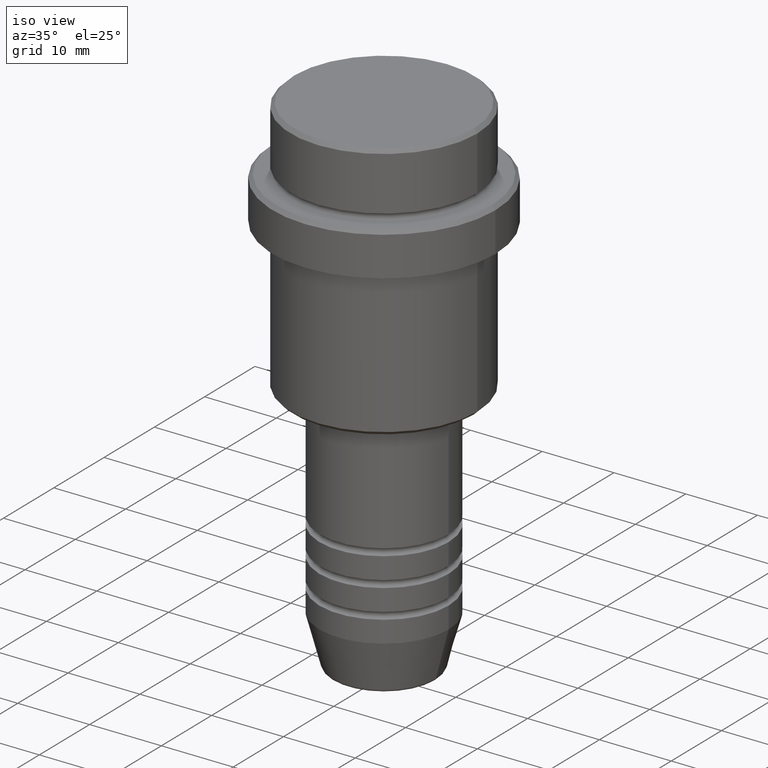
[diagram: clean part render]
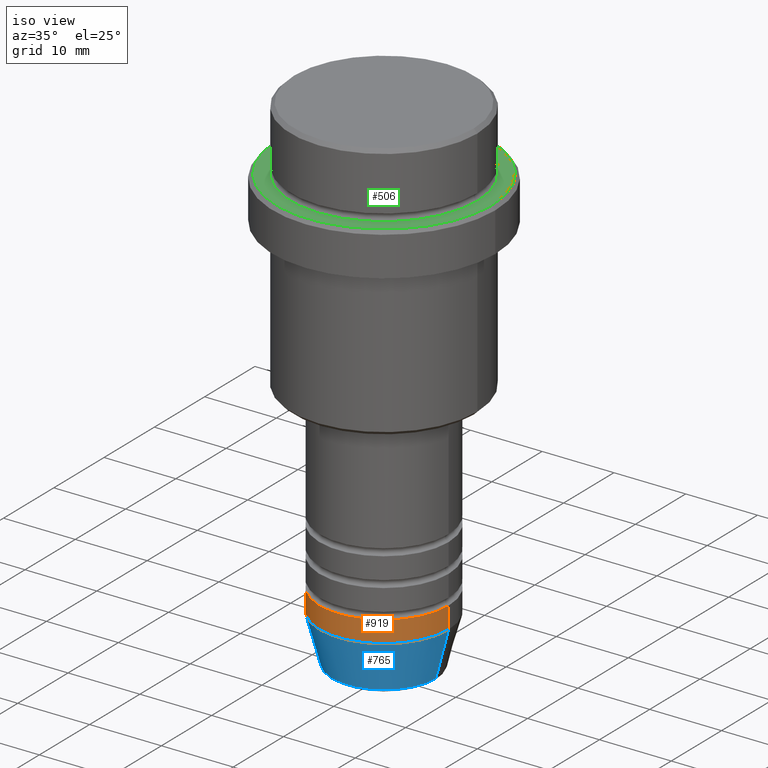
[diagram: same view with three faces highlighted in distinct colors, each labeled with its STEP entity id]
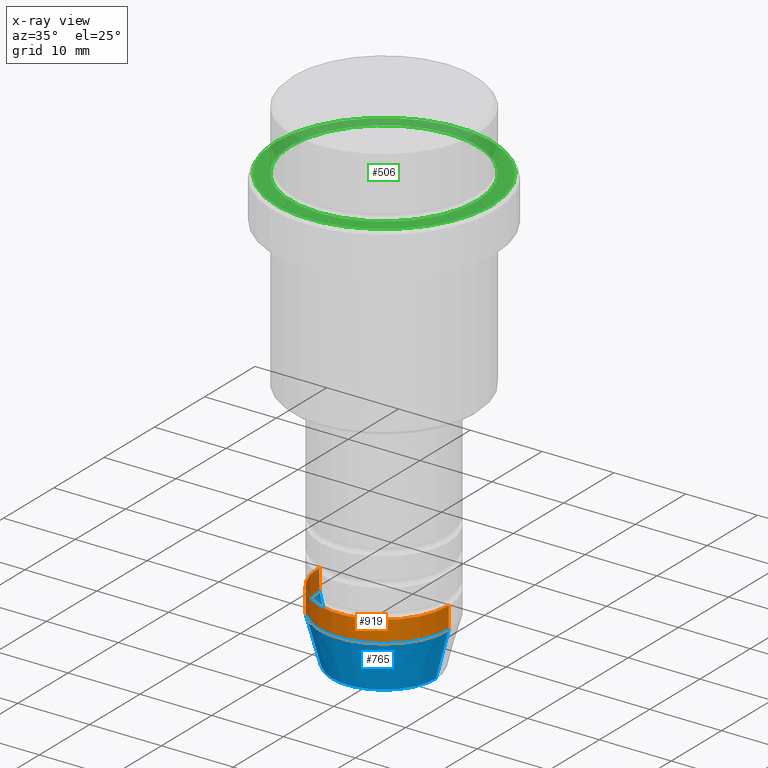
[diagram: x-ray of the same camera — body ghosted, the three highlighted faces saturated]
A machine part, iso view with three faces highlighted in distinct colors.
The next image is the same camera in x-ray (body ghosted, the three faces saturated) — at least one of them is partly hidden behind the body in this view.
Their STEP definitions:

[orange] entity #919 — the highlighted cylindrical surface (partial cylindrical patch) has radius 9 mm, axis along (-0, -0, 1).
#59 = CIRCLE ( 'NONE', #634, 9.000000000000000000 ) ;
#104 = CIRCLE ( 'NONE', #902, 9.000000000000000000 ) ;
#174 = ORIENTED_EDGE ( 'NONE', *, *, #1150, .F. ) ;
#190 = CARTESIAN_POINT ( 'NONE',  ( -9.000000000000000000, 1.102182119232617714E-15, -61.00000000000000000 ) ) ;
#208 = CARTESIAN_POINT ( 'NONE',  ( -9.000000000000000000, 1.102182119232617714E-15, 0.000000000000000000 ) ) ;
#224 = DIRECTION ( 'NONE',  ( 1.000000000000000000, 0.000000000000000000, 0.000000000000000000 ) ) ;
#233 = ORIENTED_EDGE ( 'NONE', *, *, #713, .T. ) ;
#325 = LINE ( 'NONE', #546, #787 ) ;
#358 = AXIS2_PLACEMENT_3D ( 'NONE', #1214, #1010, #1102 ) ;
#373 = CYLINDRICAL_SURFACE ( 'NONE', #358, 9.000000000000000000 ) ;
#440 = CARTESIAN_POINT ( 'NONE',  ( 0.000000000000000000, 0.000000000000000000, -64.00000000000000000 ) ) ;
#467 = VERTEX_POINT ( 'NONE', #1323 ) ;
#481 = FACE_OUTER_BOUND ( 'NONE', #505, .T. ) ;
#505 = EDGE_LOOP ( 'NONE', ( #174, #1325, #233, #685 ) ) ;
#546 = CARTESIAN_POINT ( 'NONE',  ( 9.000000000000000000, 0.000000000000000000, 0.000000000000000000 ) ) ;
#634 = AXIS2_PLACEMENT_3D ( 'NONE', #726, #1151, #866 ) ;
#636 = EDGE_CURVE ( 'NONE', #1183, #1130, #59, .T. ) ;
#685 = ORIENTED_EDGE ( 'NONE', *, *, #636, .F. ) ;
#713 = EDGE_CURVE ( 'NONE', #467, #1130, #325, .T. ) ;
#714 = LINE ( 'NONE', #208, #929 ) ;
#726 = CARTESIAN_POINT ( 'NONE',  ( 0.000000000000000000, 0.000000000000000000, -61.00000000000000000 ) ) ;
#787 = VECTOR ( 'NONE', #1393, 1000.000000000000000 ) ;
#847 = CARTESIAN_POINT ( 'NONE',  ( -9.000000000000000000, 1.102182119232617714E-15, -64.00000000000000000 ) ) ;
#866 = DIRECTION ( 'NONE',  ( 1.000000000000000000, 0.000000000000000000, 0.000000000000000000 ) ) ;
#902 = AXIS2_PLACEMENT_3D ( 'NONE', #440, #1202, #224 ) ;
#916 = CARTESIAN_POINT ( 'NONE',  ( 9.000000000000000000, 0.000000000000000000, -61.00000000000000000 ) ) ;
#919 = ADVANCED_FACE ( 'NONE', ( #481 ), #373, .T. ) ;
#929 = VECTOR ( 'NONE', #1409, 1000.000000000000000 ) ;
#1010 = DIRECTION ( 'NONE',  ( -0.000000000000000000, -0.000000000000000000, 1.000000000000000000 ) ) ;
#1102 = DIRECTION ( 'NONE',  ( 1.000000000000000000, 0.000000000000000000, 0.000000000000000000 ) ) ;
#1130 = VERTEX_POINT ( 'NONE', #916 ) ;
#1150 = EDGE_CURVE ( 'NONE', #1212, #1183, #714, .T. ) ;
#1151 = DIRECTION ( 'NONE',  ( -0.000000000000000000, -0.000000000000000000, 1.000000000000000000 ) ) ;
#1183 = VERTEX_POINT ( 'NONE', #190 ) ;
#1202 = DIRECTION ( 'NONE',  ( -0.000000000000000000, -0.000000000000000000, 1.000000000000000000 ) ) ;
#1212 = VERTEX_POINT ( 'NONE', #847 ) ;
#1214 = CARTESIAN_POINT ( 'NONE',  ( 0.000000000000000000, 0.000000000000000000, 0.000000000000000000 ) ) ;
#1323 = CARTESIAN_POINT ( 'NONE',  ( 9.000000000000000000, 0.000000000000000000, -64.00000000000000000 ) ) ;
#1325 = ORIENTED_EDGE ( 'NONE', *, *, #1361, .T. ) ;
#1361 = EDGE_CURVE ( 'NONE', #1212, #467, #104, .T. ) ;
#1393 = DIRECTION ( 'NONE',  ( -0.000000000000000000, -0.000000000000000000, 1.000000000000000000 ) ) ;
#1409 = DIRECTION ( 'NONE',  ( -0.000000000000000000, -0.000000000000000000, 1.000000000000000000 ) ) ;

[blue] entity #765 — the highlighted conical surface has half-angle 15 deg.
#18 = DIRECTION ( 'NONE',  ( -0.000000000000000000, -0.000000000000000000, 1.000000000000000000 ) ) ;
#65 = AXIS2_PLACEMENT_3D ( 'NONE', #214, #18, #109 ) ;
#104 = CIRCLE ( 'NONE', #902, 9.000000000000000000 ) ;
#109 = DIRECTION ( 'NONE',  ( 1.000000000000000000, 0.000000000000000000, 0.000000000000000000 ) ) ;
#214 = CARTESIAN_POINT ( 'NONE',  ( 0.000000000000000000, 0.000000000000000000, -70.62940952255127058 ) ) ;
#224 = DIRECTION ( 'NONE',  ( 1.000000000000000000, 0.000000000000000000, 0.000000000000000000 ) ) ;
#256 = ORIENTED_EDGE ( 'NONE', *, *, #528, .T. ) ;
#275 = ORIENTED_EDGE ( 'NONE', *, *, #1361, .F. ) ;
#280 = CARTESIAN_POINT ( 'NONE',  ( -7.223655072137189492, 9.934123627281765110E-16, -70.62940952255127058 ) ) ;
#383 = VECTOR ( 'NONE', #1171, 1000.000000000000000 ) ;
#385 = AXIS2_PLACEMENT_3D ( 'NONE', #1296, #748, #641 ) ;
#440 = CARTESIAN_POINT ( 'NONE',  ( 0.000000000000000000, 0.000000000000000000, -64.00000000000000000 ) ) ;
#467 = VERTEX_POINT ( 'NONE', #1323 ) ;
#479 = ORIENTED_EDGE ( 'NONE', *, *, #1398, .F. ) ;
#498 = CIRCLE ( 'NONE', #65, 7.223655072137188604 ) ;
#528 = EDGE_CURVE ( 'NONE', #1210, #467, #1040, .T. ) ;
#544 = EDGE_LOOP ( 'NONE', ( #479, #761, #256, #275 ) ) ;
#641 = DIRECTION ( 'NONE',  ( 1.000000000000000000, 0.000000000000000000, 0.000000000000000000 ) ) ;
#668 = CARTESIAN_POINT ( 'NONE',  ( -9.000000000000000000, 1.102182119232617714E-15, -64.00000000000000000 ) ) ;
#747 = CONICAL_SURFACE ( 'NONE', #385, 9.000000000000000000, 0.2617993877991500740 ) ;
#748 = DIRECTION ( 'NONE',  ( -0.000000000000000000, -0.000000000000000000, 1.000000000000000000 ) ) ;
#761 = ORIENTED_EDGE ( 'NONE', *, *, #1320, .T. ) ;
#765 = ADVANCED_FACE ( 'NONE', ( #1318 ), #747, .T. ) ;
#839 = VECTOR ( 'NONE', #871, 1000.000000000000000 ) ;
#847 = CARTESIAN_POINT ( 'NONE',  ( -9.000000000000000000, 1.102182119232617714E-15, -64.00000000000000000 ) ) ;
#871 = DIRECTION ( 'NONE',  ( -0.2588190451025213501, 3.169619151431772337E-17, 0.9659258262890680902 ) ) ;
#894 = LINE ( 'NONE', #668, #839 ) ;
#902 = AXIS2_PLACEMENT_3D ( 'NONE', #440, #1202, #224 ) ;
#952 = CARTESIAN_POINT ( 'NONE',  ( 9.000000000000000000, 0.000000000000000000, -64.00000000000000000 ) ) ;
#987 = VERTEX_POINT ( 'NONE', #280 ) ;
#1040 = LINE ( 'NONE', #952, #383 ) ;
#1078 = CARTESIAN_POINT ( 'NONE',  ( 7.223655072137188604, 0.000000000000000000, -70.62940952255127058 ) ) ;
#1171 = DIRECTION ( 'NONE',  ( 0.2588190451025213501, 0.000000000000000000, 0.9659258262890680902 ) ) ;
#1202 = DIRECTION ( 'NONE',  ( -0.000000000000000000, -0.000000000000000000, 1.000000000000000000 ) ) ;
#1210 = VERTEX_POINT ( 'NONE', #1078 ) ;
#1212 = VERTEX_POINT ( 'NONE', #847 ) ;
#1296 = CARTESIAN_POINT ( 'NONE',  ( 0.000000000000000000, 0.000000000000000000, -64.00000000000000000 ) ) ;
#1318 = FACE_OUTER_BOUND ( 'NONE', #544, .T. ) ;
#1320 = EDGE_CURVE ( 'NONE', #987, #1210, #498, .T. ) ;
#1323 = CARTESIAN_POINT ( 'NONE',  ( 9.000000000000000000, 0.000000000000000000, -64.00000000000000000 ) ) ;
#1361 = EDGE_CURVE ( 'NONE', #1212, #467, #104, .T. ) ;
#1398 = EDGE_CURVE ( 'NONE', #987, #1212, #894, .T. ) ;

[green] entity #506 — the highlighted planar face has unit normal (0, -0, 1).
#28 = ORIENTED_EDGE ( 'NONE', *, *, #116, .T. ) ;
#50 = EDGE_CURVE ( 'NONE', #188, #606, #230, .T. ) ;
#56 = DIRECTION ( 'NONE',  ( -0.000000000000000000, -0.000000000000000000, 1.000000000000000000 ) ) ;
#63 = AXIS2_PLACEMENT_3D ( 'NONE', #1047, #56, #487 ) ;
#116 = EDGE_CURVE ( 'NONE', #1203, #1024, #875, .T. ) ;
#181 = FACE_BOUND ( 'NONE', #534, .T. ) ;
#188 = VERTEX_POINT ( 'NONE', #939 ) ;
#196 = CARTESIAN_POINT ( 'NONE',  ( -15.00000000000001421, 0.000000000000000000, -9.000000000000000000 ) ) ;
#230 = CIRCLE ( 'NONE', #671, 12.99999999999999467 ) ;
#259 = CARTESIAN_POINT ( 'NONE',  ( 0.000000000000000000, 0.000000000000000000, -9.000000000000000000 ) ) ;
#375 = EDGE_CURVE ( 'NONE', #606, #188, #807, .T. ) ;
#399 = CARTESIAN_POINT ( 'NONE',  ( 15.00000000000001421, 1.867586368699714559E-15, -9.000000000000000000 ) ) ;
#451 = DIRECTION ( 'NONE',  ( 1.000000000000000000, 0.000000000000000000, 0.000000000000000000 ) ) ;
#487 = DIRECTION ( 'NONE',  ( 1.000000000000000000, 0.000000000000000000, 0.000000000000000000 ) ) ;
#499 = FACE_OUTER_BOUND ( 'NONE', #901, .T. ) ;
#506 = ADVANCED_FACE ( 'NONE', ( #499, #181 ), #733, .T. ) ;
#521 = DIRECTION ( 'NONE',  ( 0.000000000000000000, -0.000000000000000000, 1.000000000000000000 ) ) ;
#534 = EDGE_LOOP ( 'NONE', ( #696, #1402 ) ) ;
#550 = CARTESIAN_POINT ( 'NONE',  ( 0.000000000000000000, 0.000000000000000000, -9.000000000000000000 ) ) ;
#606 = VERTEX_POINT ( 'NONE', #1266 ) ;
#671 = AXIS2_PLACEMENT_3D ( 'NONE', #259, #1416, #451 ) ;
#696 = ORIENTED_EDGE ( 'NONE', *, *, #50, .T. ) ;
#701 = AXIS2_PLACEMENT_3D ( 'NONE', #1048, #521, #932 ) ;
#733 = PLANE ( 'NONE',  #701 ) ;
#786 = AXIS2_PLACEMENT_3D ( 'NONE', #831, #1058, #1270 ) ;
#807 = CIRCLE ( 'NONE', #786, 12.99999999999999467 ) ;
#831 = CARTESIAN_POINT ( 'NONE',  ( 0.000000000000000000, 0.000000000000000000, -9.000000000000000000 ) ) ;
#875 = CIRCLE ( 'NONE', #1153, 15.00000000000001421 ) ;
#901 = EDGE_LOOP ( 'NONE', ( #28, #1263 ) ) ;
#932 = DIRECTION ( 'NONE',  ( 1.000000000000000000, 0.000000000000000000, 0.000000000000000000 ) ) ;
#939 = CARTESIAN_POINT ( 'NONE',  ( 12.99999999999999467, 0.000000000000000000, -9.000000000000000000 ) ) ;
#965 = EDGE_CURVE ( 'NONE', #1024, #1203, #1069, .T. ) ;
#985 = DIRECTION ( 'NONE',  ( -0.000000000000000000, -0.000000000000000000, 1.000000000000000000 ) ) ;
#1024 = VERTEX_POINT ( 'NONE', #399 ) ;
#1047 = CARTESIAN_POINT ( 'NONE',  ( 0.000000000000000000, 0.000000000000000000, -9.000000000000000000 ) ) ;
#1048 = CARTESIAN_POINT ( 'NONE',  ( 0.000000000000000000, 12.49999999999999289, -9.000000000000000000 ) ) ;
#1058 = DIRECTION ( 'NONE',  ( 0.000000000000000000, 0.000000000000000000, -1.000000000000000000 ) ) ;
#1069 = CIRCLE ( 'NONE', #63, 15.00000000000001421 ) ;
#1153 = AXIS2_PLACEMENT_3D ( 'NONE', #550, #985, #1313 ) ;
#1203 = VERTEX_POINT ( 'NONE', #196 ) ;
#1263 = ORIENTED_EDGE ( 'NONE', *, *, #965, .T. ) ;
#1266 = CARTESIAN_POINT ( 'NONE',  ( -12.99999999999999467, 1.592040838891558504E-15, -9.000000000000000000 ) ) ;
#1270 = DIRECTION ( 'NONE',  ( 1.000000000000000000, 0.000000000000000000, 0.000000000000000000 ) ) ;
#1313 = DIRECTION ( 'NONE',  ( 1.000000000000000000, 0.000000000000000000, 0.000000000000000000 ) ) ;
#1402 = ORIENTED_EDGE ( 'NONE', *, *, #375, .T. ) ;
#1416 = DIRECTION ( 'NONE',  ( 0.000000000000000000, 0.000000000000000000, -1.000000000000000000 ) ) ;